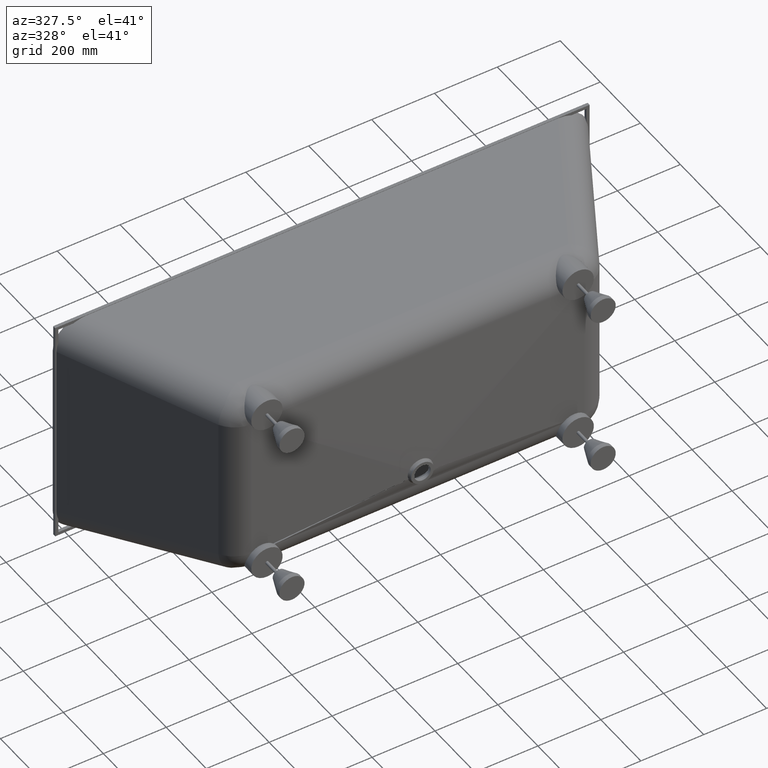
[diagram: clean part render]
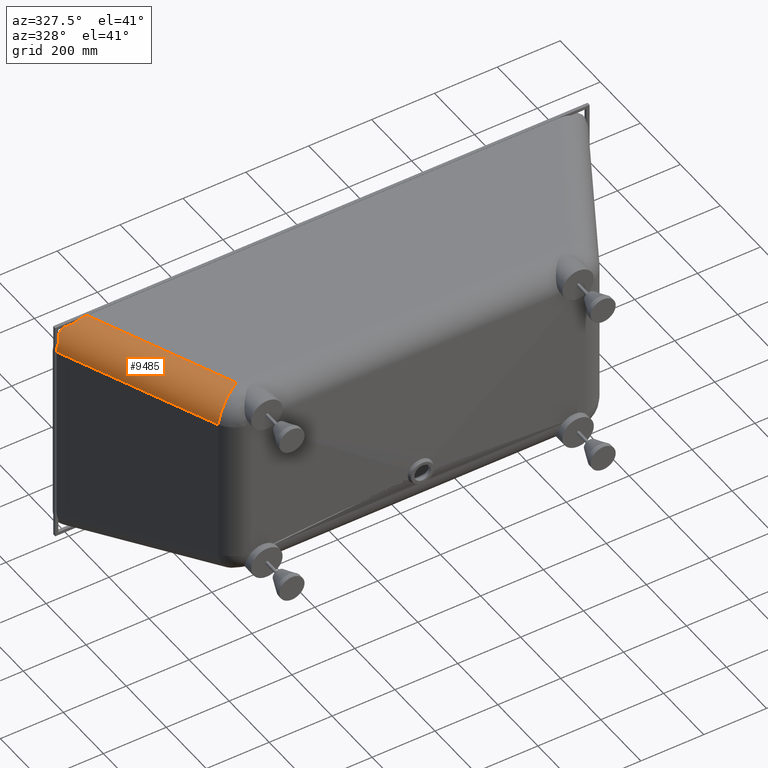
[diagram: same view with one face highlighted and labeled with its STEP entity id]
A machine part, auxiliary view. The second image highlights one B-rep face of the part: STEP entity #9485.
In plain terms, the highlighted cylindrical surface (edge-blend (fillet) strip) has radius 90 mm, axis along (0.482, -0.8694, -0.1091).
Its self-contained STEP definition (entity closure, byte-faithful):
#108 = CARTESIAN_POINT ( 'NONE',  ( -851.4339491739116300, 0.0000000000000000000, 335.3803136777303800 ) ) ;
#128 = CARTESIAN_POINT ( 'NONE',  ( -812.0691553821920900, 0.0000000000000000000, 370.0784722387882100 ) ) ;
#713 = AXIS2_PLACEMENT_3D ( 'NONE', #8338, #8152, #8144 ) ;
#802 = EDGE_CURVE ( 'NONE', #7391, #1863, #4559, .T. ) ;
#948 = DIRECTION ( 'NONE',  ( -0.4819703650835168700, 0.8693654132449848400, 0.1091253656792871000 ) ) ;
#951 = CARTESIAN_POINT ( 'NONE',  ( -462.4741077396467400, -701.5954875682213000, 196.7834084433891600 ) ) ;
#1628 = EDGE_CURVE ( 'NONE', #1863, #10243, #3609, .T. ) ;
#1863 = VERTEX_POINT ( 'NONE', #5956 ) ;
#2202 = ORIENTED_EDGE ( 'NONE', *, *, #5131, .F. ) ;
#2377 = FACE_OUTER_BOUND ( 'NONE', #7710, .T. ) ;
#2702 = AXIS2_PLACEMENT_3D ( 'NONE', #10128, #10116, #10101 ) ;
#3068 = CARTESIAN_POINT ( 'NONE',  ( -754.7426625564265800, 0.0000000000000000000, 370.0784722387882100 ) ) ;
#3522 = VECTOR ( 'NONE', #7599, 1000.000000000000000 ) ;
#3609 =( BOUNDED_CURVE ( )  B_SPLINE_CURVE ( 3, ( #8135, #108, #128, #6122 ),
 .UNSPECIFIED., .F., .F. ) 
 B_SPLINE_CURVE_WITH_KNOTS ( ( 4, 4 ),
 ( 2.947239846388726800, 4.457611448416478200 ),
 .UNSPECIFIED. ) 
 CURVE ( )  GEOMETRIC_REPRESENTATION_ITEM ( )  RATIONAL_B_SPLINE_CURVE ( ( 1.000000000000000000, 0.8187628021888564400, 0.8187628021888564400, 1.000000000000000000 ) ) 
 REPRESENTATION_ITEM ( '' )  );
#4559 = LINE ( 'NONE', #951, #5055 ) ;
#5055 = VECTOR ( 'NONE', #948, 1000.000000000000000 ) ;
#5131 = EDGE_CURVE ( 'NONE', #6978, #7391, #9451, .T. ) ;
#5409 = ORIENTED_EDGE ( 'NONE', *, *, #9644, .F. ) ;
#5776 = LINE ( 'NONE', #7797, #3522 ) ;
#5956 = CARTESIAN_POINT ( 'NONE',  ( -851.4339491739117400, 0.0000000000000000000, 284.8497876360531800 ) ) ;
#6122 = CARTESIAN_POINT ( 'NONE',  ( -754.7426625564265800, 0.0000000000000000000, 370.0784722387882100 ) ) ;
#6776 = ORIENTED_EDGE ( 'NONE', *, *, #1628, .F. ) ;
#6978 = VERTEX_POINT ( 'NONE', #10705 ) ;
#7391 = VERTEX_POINT ( 'NONE', #7817 ) ;
#7599 = DIRECTION ( 'NONE',  ( 0.4819703650835168700, -0.8693654132449848400, -0.1091253656792871000 ) ) ;
#7710 = EDGE_LOOP ( 'NONE', ( #6776, #9470, #2202, #5409 ) ) ;
#7797 = CARTESIAN_POINT ( 'NONE',  ( -383.7611463375187100, -669.1666594439166100, 286.0826572458277000 ) ) ;
#7817 = CARTESIAN_POINT ( 'NONE',  ( -606.5928324459812300, -441.6379388526442000, 229.4140630938800900 ) ) ;
#8135 = CARTESIAN_POINT ( 'NONE',  ( -851.4339491739117400, 0.0000000000000000000, 284.8497876360531800 ) ) ;
#8144 = DIRECTION ( 'NONE',  ( 0.8745884600236439900, 0.4848659872516023500, 0.0000000000000000000 ) ) ;
#8152 = DIRECTION ( 'NONE',  ( 0.4819703650835168700, -0.8693654132449848400, -0.1091253656792871000 ) ) ;
#8338 = CARTESIAN_POINT ( 'NONE',  ( -383.7611463375187700, -657.9575487155771000, 196.7834084433891600 ) ) ;
#8686 = CYLINDRICAL_SURFACE ( 'NONE', #713, 90.00000000000001400 ) ;
#9451 = CIRCLE ( 'NONE', #2702, 89.99999999999998600 ) ;
#9470 = ORIENTED_EDGE ( 'NONE', *, *, #802, .F. ) ;
#9485 = ADVANCED_FACE ( 'NONE', ( #2377 ), #8686, .T. ) ;
#9644 = EDGE_CURVE ( 'NONE', #10243, #6978, #5776, .T. ) ;
#10101 = DIRECTION ( 'NONE',  ( 0.8745884600236443200, 0.4848659872516018500, 0.0000000000000000000 ) ) ;
#10116 = DIRECTION ( 'NONE',  ( 0.4819703650835168700, -0.8693654132449848400, -0.1091253656792871000 ) ) ;
#10128 = CARTESIAN_POINT ( 'NONE',  ( -527.8798710438534300, -397.9999999999998900, 229.4140630938800900 ) ) ;
#10243 = VERTEX_POINT ( 'NONE', #3068 ) ;
#10705 = CARTESIAN_POINT ( 'NONE',  ( -527.8798710438534300, -409.2091107283395700, 318.7133118963186000 ) ) ;